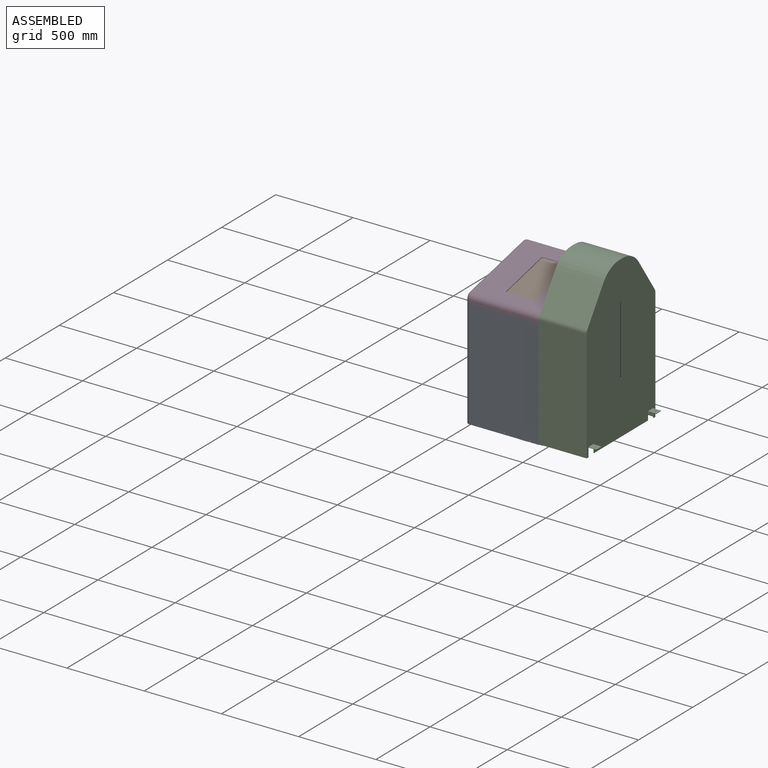
[diagram: assembled view]
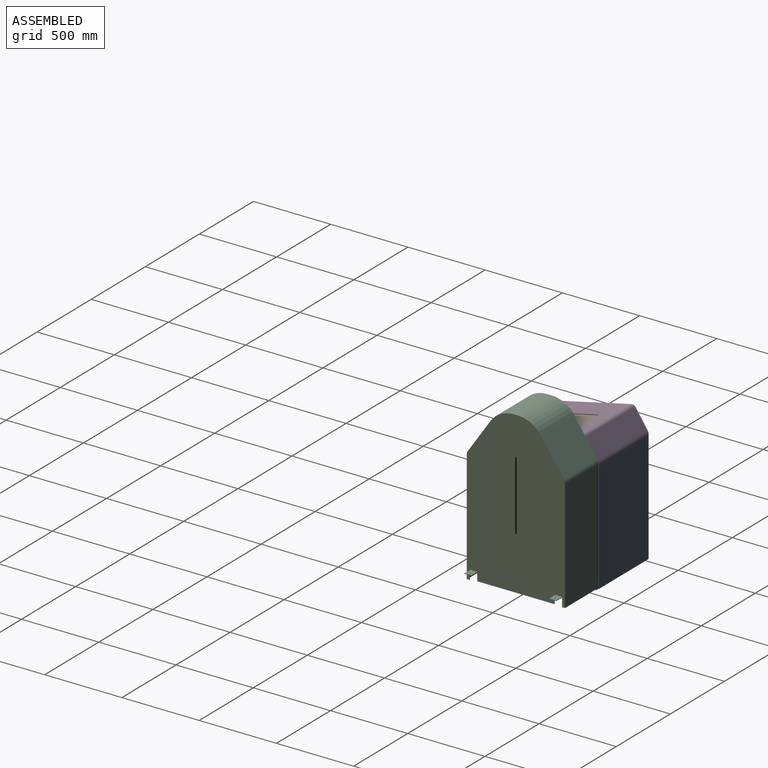
[diagram: assembled view, second angle]
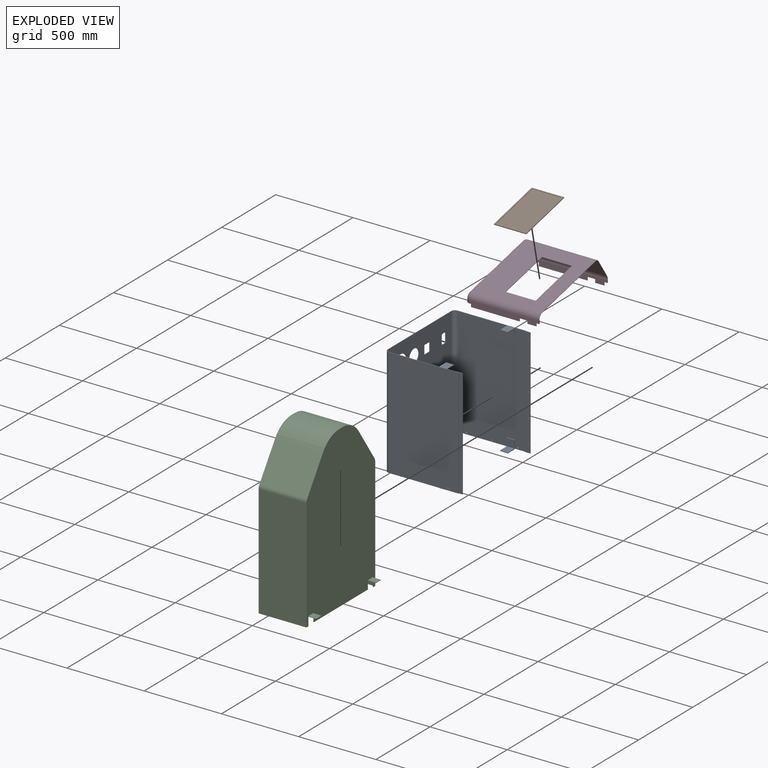
[diagram: exploded view]
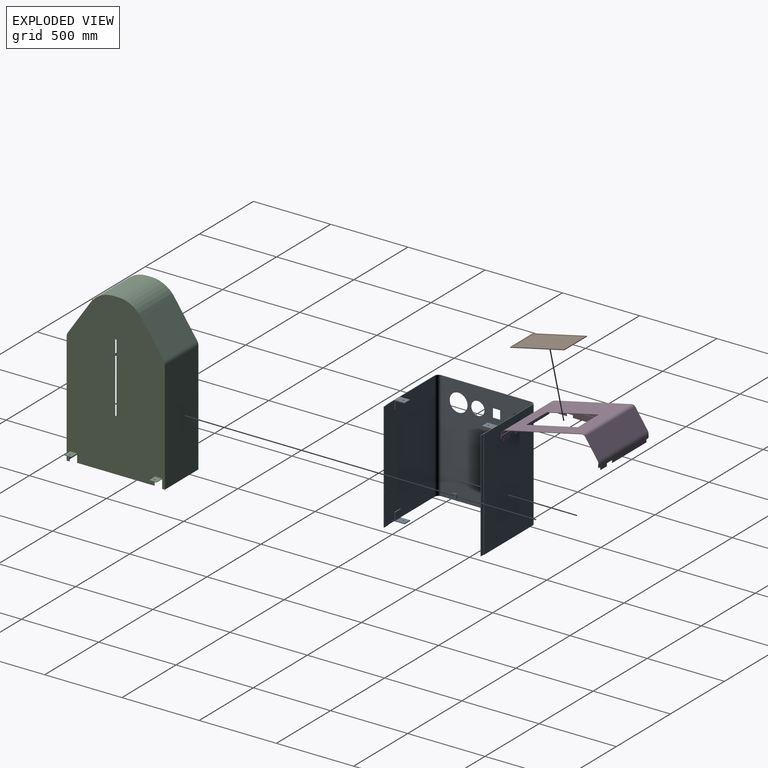
[diagram: exploded view, second angle]
ASSEMBLY  parts=4 mates=3
PART A: 115 faces, bbox 499.5x636x710 mm
  f0: plane 707.5x586mm, normal (-1,0,0), area 377061.5mm2, adj f9,f10,f17,f18,f52,f53,f75,f76
  f1: plane 707.5x580mm, normal (1,0,0), area 371354.1mm2, adj f9,f10,f11,f12,f13,f14,f16,f46
  f2: plane 707.5x433.5mm, normal (0,-1,0), area 301342.3mm2, adj f3,f9,f10,f16,f22,f23,f24,f27
  f3: plane 707.5x3mm, normal (-1,0,0), area 2122.5mm2, adj f2,f4,f9,f10
  f4: plane 707.5x38mm, normal (0,-1,0), area 26822.2mm2, adj f3,f5,f9,f10,f34,f35,f36,f37
  f5: plane 707.5x3mm, normal (1,0,0), area 2122.5mm2, adj f4,f6,f9,f10
  f6: plane 707.5x23.5mm, normal (0,1,0), area 16563.4mm2, adj f5,f7,f9,f10,f34,f35,f36,f37
  f7: plane 707.5x3mm, normal (1,0,0), area 2122.5mm2, adj f6,f8,f9,f10
  f8: plane 707.5x451mm, normal (0,1,0), area 319023.6mm2, adj f7,f9,f10,f17,f107,f109,f111
  f9: plane 636x499.5mm, normal (0,0,1), area 11401.4mm2, adj f0,f1,f2,f3,f4,f5,f6,f7
  f10: plane 636x499.5mm, normal (0,0,-1), area 4974mm2, adj f0,f1,f2,f3,f4,f5,f6,f7
  f11: plane 28x7mm, normal (0,-1,0), area 196mm2, adj f1,f12,f14,f15
  f12: plane 28x7mm, normal (0,0,1), area 196mm2, adj f1,f11,f13,f15
  f13: plane 28x7mm, normal (0,1,0), area 196mm2, adj f1,f12,f14,f15
  f14: plane 28x7mm, normal (0,0,-1), area 196mm2, adj f1,f11,f13,f15
  f15: plane 28x28mm, normal (1,0,0), area 731.2mm2, adj f11,f12,f13,f14,f18
  f16: cylinder r=25mm len=707.5mm, axis (0,0,1), area 27783.5mm2, adj f1,f2,f9,f10
  f17: cylinder r=25mm len=707.5mm, axis (0,0,-1), area 27783.5mm2, adj f0,f8,f9,f10
  f18: cylinder r=4.1mm len=10mm, axis (-1,0,0), area 257.6mm2, adj f0,f15
  f19: plane 50x5mm, normal (0,-1,0), area 250mm2, adj f9,f20,f23,f24
  f20: plane 60x50mm, normal (0,0,-1), area 2963.7mm2, adj f19,f21,f23,f24,f33
  f21: plane 50x50mm, normal (0,-1,0), area 2500mm2, adj f20,f22,f23,f24
  f22: plane 50x5mm, normal (0,0,-1), area 250mm2, adj f2,f21,f23,f24
  f23: plane 65x55mm, normal (-1,0,0), area 575mm2, adj f2,f9,f19,f20,f21,f22
  f24: plane 65x55mm, normal (1,0,0), area 575mm2, adj f2,f9,f19,f20,f21,f22
  f25: plane 50x5mm, normal (0,-1,0), area 250mm2, adj f26,f29,f30,f31
  f26: plane 61x50mm, normal (0,0,-1), area 3013.7mm2, adj f25,f30,f31,f32,f77
  f27: plane 50x5mm, normal (0,0,1), area 250mm2, adj f2,f28,f30,f31
  f28: plane 50x50mm, normal (0,-1,0), area 2500mm2, adj f27,f29,f30,f31
  f29: plane 60x50mm, normal (0,0,1), area 2963.7mm2, adj f25,f28,f30,f31,f32
  f30: plane 65x55mm, normal (-1,0,0), area 571.6mm2, adj f2,f25,f26,f27,f28,f29,f77
  f31: plane 65x55mm, normal (1,0,0), area 571.6mm2, adj f2,f25,f26,f27,f28,f29,f77
  f32: cylinder r=3.4mm len=6.8mm, axis (0,0,1), area 106.8mm2, adj f26,f29
  f33: cylinder r=3.4mm len=6.8mm, axis (0,0,-1), area 106.8mm2, adj f9,f20
  f34: cylinder r=2mm len=4mm, axis (0,-1,0), area 37.7mm2, adj f4,f6
  f35: cylinder r=2mm len=4mm, axis (0,-1,0), area 37.7mm2, adj f4,f6
  f36: cylinder r=2mm len=4mm, axis (0,-1,0), area 37.7mm2, adj f4,f6
  f37: cylinder r=2mm len=4mm, axis (0,-1,0), area 37.7mm2, adj f4,f6
  f38: cylinder r=2mm len=4mm, axis (0,-1,0), area 37.7mm2, adj f4,f6
  f39: plane 707.5x433.5mm, normal (0,1,0), area 301267.3mm2, adj f9,f10,f40,f51,f57,f58,f59,f63
  f40: plane 707.5x3mm, normal (-1,0,0), area 2122.5mm2, adj f9,f10,f39,f41
  f41: plane 707.5x38mm, normal (0,1,0), area 26822.2mm2, adj f9,f10,f40,f42,f70,f71,f72,f73
  f42: plane 707.5x3mm, normal (1,0,0), area 2122.5mm2, adj f9,f10,f41,f43
  f43: plane 707.5x23.5mm, normal (0,-1,0), area 16563.4mm2, adj f9,f10,f42,f44,f70,f71,f72,f73
  f44: plane 707.5x3mm, normal (1,0,0), area 2122.5mm2, adj f9,f10,f43,f45
  f45: plane 707.5x451mm, normal (0,-1,0), area 319023.6mm2, adj f9,f10,f44,f52,f106,f108,f110
  f46: plane 28x7mm, normal (0,1,0), area 196mm2, adj f1,f47,f49,f50
  f47: plane 28x7mm, normal (0,0,1), area 196mm2, adj f1,f46,f48,f50
  f48: plane 28x7mm, normal (0,-1,0), area 196mm2, adj f1,f47,f49,f50
  f49: plane 28x7mm, normal (0,0,-1), area 196mm2, adj f1,f46,f48,f50
  f50: plane 28x28mm, normal (1,0,0), area 731.2mm2, adj f46,f47,f48,f49,f53
  f51: cylinder r=25mm len=707.5mm, axis (0,0,1), area 27783.5mm2, adj f1,f9,f10,f39
  f52: cylinder r=25mm len=707.5mm, axis (0,0,-1), area 27783.5mm2, adj f0,f9,f10,f45
  f53: cylinder r=4.1mm len=10mm, axis (-1,0,0), area 257.6mm2, adj f0,f50
  f54: plane 50x5mm, normal (0,1,0), area 250mm2, adj f9,f55,f58,f59
  f55: plane 60x50mm, normal (0,0,-1), area 2963.7mm2, adj f54,f56,f58,f59,f69
  f56: plane 50x50mm, normal (0,1,0), area 2500mm2, adj f55,f57,f58,f59
  f57: plane 50x5mm, normal (0,0,-1), area 250mm2, adj f39,f56,f58,f59
  f58: plane 65x55mm, normal (-1,0,0), area 575mm2, adj f9,f39,f54,f55,f56,f57
  f59: plane 65x55mm, normal (1,0,0), area 575mm2, adj f9,f39,f54,f55,f56,f57
  f60: plane 50x5mm, normal (0,1,0), area 250mm2, adj f61,f65,f66,f67
  f61: plane 65x50mm, normal (0,0,-1), area 3213.7mm2, adj f60,f62,f66,f67,f68
  f62: plane 50x2.5mm, normal (0,-1,0), area 125mm2, adj f10,f61,f66,f67
  f63: plane 50x5mm, normal (0,0,1), area 250mm2, adj f39,f64,f66,f67
  f64: plane 50x50mm, normal (0,1,0), area 2500mm2, adj f63,f65,f66,f67
  f65: plane 60x50mm, normal (0,0,1), area 2963.7mm2, adj f60,f64,f66,f67,f68
  f66: plane 65x55mm, normal (-1,0,0), area 575mm2, adj f39,f60,f61,f62,f63,f64,f65
  f67: plane 65x55mm, normal (1,0,0), area 575mm2, adj f39,f60,f61,f62,f63,f64,f65
  f68: cylinder r=3.4mm len=6.8mm, axis (0,0,1), area 106.8mm2, adj f61,f65
  f69: cylinder r=3.4mm len=6.8mm, axis (0,0,-1), area 106.8mm2, adj f9,f55
  f70: cylinder r=2mm len=4mm, axis (0,1,0), area 37.7mm2, adj f41,f43
  f71: cylinder r=2mm len=4mm, axis (0,1,0), area 37.7mm2, adj f41,f43
  f72: cylinder r=2mm len=4mm, axis (0,1,0), area 37.7mm2, adj f41,f43
  f73: cylinder r=2mm len=4mm, axis (0,1,0), area 37.7mm2, adj f41,f43
  f74: cylinder r=2mm len=4mm, axis (0,1,0), area 37.7mm2, adj f41,f43
  f75: cylinder r=44mm len=88mm, axis (1,0,0), area 829.4mm2, adj f0,f1
  f76: cylinder r=59mm len=118mm, axis (1,0,0), area 1112.1mm2, adj f0,f1
  f77: cylinder r=4mm len=50mm, axis (1,0,0), area 314.2mm2, adj f2,f26,f30,f31
  f78: cylinder r=8mm len=7.71mm, axis (-1,0,0), area 31.2mm2, adj f0,f1,f80,f88
  f79: cylinder r=8mm len=4.28mm, axis (-1,0,0), area 13mm2, adj f0,f1,f80,f82
  f80: plane 10x3mm, normal (0,-0.27,0.96), area 31.1mm2, adj f0,f1,f78,f79
  f81: cylinder r=8mm len=7.71mm, axis (1,0,0), area 31.2mm2, adj f0,f1,f82,f89
  f82: plane 10x3mm, normal (0,0.27,0.96), area 31.1mm2, adj f0,f1,f79,f81
  f83: cylinder r=8mm len=7.71mm, axis (-1,0,0), area 31.2mm2, adj f0,f1,f85,f89
  f84: cylinder r=8mm len=4.28mm, axis (-1,0,0), area 13mm2, adj f0,f1,f85,f87
  f85: plane 10x3mm, normal (0,0.27,-0.96), area 31.1mm2, adj f0,f1,f83,f84
  f86: cylinder r=8mm len=7.71mm, axis (1,0,0), area 31.2mm2, adj f0,f1,f87,f88
  f87: plane 10x3mm, normal (0,-0.27,-0.96), area 31.1mm2, adj f0,f1,f84,f86
  f88: plane 45.34x3mm, normal (0,-1,0), area 136mm2, adj f0,f1,f78,f86
  f89: plane 45.34x3mm, normal (0,1,0), area 136mm2, adj f0,f1,f81,f83
  f90: plane 50.8x3mm, normal (0,-1,0), area 152.4mm2, adj f0,f1,f102,f103
  f91: plane 50.8x3mm, normal (0,1,0), area 152.4mm2, adj f0,f1,f104,f105
  f92: plane 43x3mm, normal (0,0,1), area 129mm2, adj f0,f1,f103,f104
  f93: plane 43x3mm, normal (0,0,-1), area 129mm2, adj f0,f1,f102,f105
  f94: plane 114x3mm, normal (0,1,0), area 342mm2, adj f0,f1,f98,f101
  f95: plane 114x3mm, normal (0,0,1), area 342mm2, adj f0,f1,f100,f101
  f96: plane 114x3mm, normal (0,-1,0), area 342mm2, adj f0,f1,f99,f100
  f97: plane 114x3mm, normal (0,0,-1), area 342mm2, adj f0,f1,f98,f99
  f98: cylinder r=5mm len=5mm, axis (1,0,0), area 23.6mm2, adj f0,f1,f94,f97
  f99: cylinder r=5mm len=5mm, axis (1,0,0), area 23.6mm2, adj f0,f1,f96,f97
  f100: cylinder r=5mm len=5mm, axis (1,0,0), area 23.6mm2, adj f0,f1,f95,f96
  f101: cylinder r=5mm len=5mm, axis (1,0,0), area 23.6mm2, adj f0,f1,f94,f95
  f102: cylinder r=3mm len=3mm, axis (1,0,0), area 14.1mm2, adj f0,f1,f90,f93
  f103: cylinder r=3mm len=3mm, axis (-1,0,0), area 14.1mm2, adj f0,f1,f90,f92
  f104: cylinder r=3mm len=3mm, axis (1,0,0), area 14.1mm2, adj f0,f1,f91,f92
  f105: cylinder r=3mm len=3mm, axis (-1,0,0), area 14.1mm2, adj f0,f1,f91,f93
  f106: cylinder r=2.5mm len=5mm, axis (0,-1,0), area 47.1mm2, adj f39,f45
  f107: cylinder r=2.5mm len=5mm, axis (0,-1,0), area 47.1mm2, adj f2,f8
  f108: cylinder r=2.5mm len=5mm, axis (0,-1,0), area 47.1mm2, adj f39,f45
  f109: cylinder r=2.5mm len=5mm, axis (0,-1,0), area 47.1mm2, adj f2,f8
  f110: cylinder r=2.5mm len=5mm, axis (0,-1,0), area 47.1mm2, adj f39,f45
  f111: cylinder r=2.5mm len=5mm, axis (0,-1,0), area 47.1mm2, adj f2,f8
  f112: cylinder r=2.5mm len=5mm, axis (1,0,0), area 47.1mm2, adj f0,f1
  f113: cylinder r=2.5mm len=5mm, axis (1,0,0), area 47.1mm2, adj f0,f1
  f114: cylinder r=2.5mm len=5mm, axis (1,0,0), area 47.1mm2, adj f0,f1
PART B: 35 faces, bbox 359.3x209.5x5.5 mm
  f0: plane 209.5x4.99mm, normal (-1,0,0), area 1040.8mm2, adj f1,f3,f5,f11,f13,f15,f17,f30
  f1: plane 359.3x4.99mm, normal (0,-1,0), area 1793.6mm2, adj f0,f2,f5,f29
  f2: plane 209.5x4.99mm, normal (1,0,0), area 1040.8mm2, adj f1,f3,f5,f19,f21,f23,f25,f27
  f3: plane 359.3x4.99mm, normal (0,1,0), area 1793.6mm2, adj f0,f2,f5,f28
  f4: plane 358.28x208.48mm, normal (0,0,1), area 7801.8mm2, adj f27,f28,f29,f30,f31,f32,f33,f34
  f5: plane 359.3x209.5mm, normal (0,0,-1), area 75273.3mm2, adj f0,f1,f2,f3
  f6: plane 193.54x1.78mm, normal (1,0,0), area 344.1mm2, adj f7,f9,f10,f32
  f7: plane 344.23x1.78mm, normal (0,-1,0), area 612mm2, adj f6,f8,f10,f31
  f8: plane 193.54x1.78mm, normal (-1,0,0), area 344.1mm2, adj f7,f9,f10,f33
  f9: plane 344.23x1.78mm, normal (0,1,0), area 612mm2, adj f6,f8,f10,f34
  f10: plane 344.23x193.54mm, normal (0,0,1), area 66621.3mm2, adj f6,f7,f8,f9
  f11: cylinder r=0.64mm len=2.03mm, axis (-1,0,0), area 8.1mm2, adj f0,f12
  f12: plane 1.27x1.27mm, normal (-1,0,0), area 1.3mm2, adj f11
  f13: cylinder r=0.64mm len=2.03mm, axis (-1,0,0), area 8.1mm2, adj f0,f14
  f14: plane 1.27x1.27mm, normal (-1,0,0), area 1.3mm2, adj f13
  f15: cylinder r=0.64mm len=2.03mm, axis (-1,0,0), area 8.1mm2, adj f0,f16
  f16: plane 1.27x1.27mm, normal (-1,0,0), area 1.3mm2, adj f15
  f17: cylinder r=0.64mm len=2.03mm, axis (-1,0,0), area 8.1mm2, adj f0,f18
  f18: plane 1.27x1.27mm, normal (-1,0,0), area 1.3mm2, adj f17
  f19: cylinder r=0.64mm len=2.03mm, axis (1,0,0), area 8.1mm2, adj f2,f20
  f20: plane 1.27x1.27mm, normal (1,0,0), area 1.3mm2, adj f19
  f21: cylinder r=0.64mm len=2.03mm, axis (1,0,0), area 8.1mm2, adj f2,f22
  f22: plane 1.27x1.27mm, normal (1,0,0), area 1.3mm2, adj f21
  f23: cylinder r=0.64mm len=2.03mm, axis (1,0,0), area 8.1mm2, adj f2,f24
  f24: plane 1.27x1.27mm, normal (1,0,0), area 1.3mm2, adj f23
  f25: cylinder r=0.64mm len=2.03mm, axis (1,0,0), area 8.1mm2, adj f2,f26
  f26: plane 1.27x1.27mm, normal (1,0,0), area 1.3mm2, adj f25
  f27: cylinder r=0.51mm len=209.5mm, axis (0,1,0), area 166.9mm2, adj f2,f4,f28,f29
  f28: cylinder r=0.51mm len=359.3mm, axis (-1,0,0), area 286.4mm2, adj f3,f4,f27,f30
  f29: cylinder r=0.51mm len=359.3mm, axis (1,0,0), area 286.4mm2, adj f1,f4,f27,f30
  f30: cylinder r=0.51mm len=209.5mm, axis (0,-1,0), area 166.9mm2, adj f0,f4,f28,f29
  f31: cylinder r=0.25mm len=344.74mm, axis (-1,0,0), area 137.4mm2, adj f4,f7,f32,f33
  f32: cylinder r=0.25mm len=194.04mm, axis (0,-1,0), area 77.3mm2, adj f4,f6,f31,f34
  f33: cylinder r=0.25mm len=194.04mm, axis (0,1,0), area 77.3mm2, adj f4,f8,f31,f34
  f34: cylinder r=0.25mm len=344.74mm, axis (1,0,0), area 137.4mm2, adj f4,f9,f32,f33
PART C: 60 faces, bbox 360x636x1045 mm
  f0: plane 500x3mm, normal (0,0,-1), area 1500mm2, adj f6,f8,f28,f29
  f1: plane 310x18mm, normal (0,0,-1), area 975mm2, adj f5,f6,f7,f8,f10,f26
  f2: plane 304x214.27mm, normal (0,-0.83,-0.56), area 78823mm2, adj f8,f17,f19,f23
  f3: plane 304x214.27mm, normal (0,0.83,-0.56), area 78823mm2, adj f8,f17,f18,f24
  f4: plane 304x27.26mm, normal (0,0,-1), area 8286.9mm2, adj f8,f17,f18,f19
  f5: plane 726.74x307mm, normal (0,1,0), area 222998.4mm2, adj f1,f8,f10,f16,f17,f24,f45,f47
  f6: plane 1045x636mm, normal (-1,0,0), area 585345.2mm2, adj f0,f1,f7,f11,f12,f13,f14,f15
  f7: plane 727.67x310mm, normal (0,-1,0), area 225514mm2, adj f1,f6,f10,f22,f45,f47,f49,f51
  f8: plane 1042x630mm, normal (1,0,0), area 578289.9mm2, adj f0,f1,f2,f3,f4,f5,f9,f12
  f9: plane 726.74x307mm, normal (0,-1,0), area 222993.8mm2, adj f8,f10,f12,f16,f17,f23,f44,f46
  f10: plane 1045x636mm, normal (1,0,0), area 151309.5mm2, adj f1,f5,f7,f9,f11,f12,f13,f14
  f11: plane 727.67x310mm, normal (0,1,0), area 225514mm2, adj f6,f10,f12,f25,f44,f46,f48,f50
  f12: plane 310x18mm, normal (0,0,-1), area 975mm2, adj f6,f8,f9,f10,f11,f31
  f13: plane 310x216.34mm, normal (0,-0.83,0.56), area 81157.1mm2, adj f6,f10,f20,f22
  f14: plane 310x30.43mm, normal (0,0,1), area 9433.8mm2, adj f6,f10,f20,f21
  f15: plane 310x216.34mm, normal (0,0.83,0.56), area 81157.1mm2, adj f6,f10,f21,f25
  f16: plane 630x3mm, normal (0,0,-1), area 1890mm2, adj f5,f9,f10,f17
  f17: plane 630x332.99mm, normal (-1,0,0), area 144009.1mm2, adj f2,f3,f4,f5,f9,f16,f18,f19
  f18: cylinder r=179.6mm len=304mm, axis (1,0,0), area 53105mm2, adj f3,f4,f8,f17
  f19: cylinder r=179.6mm len=304mm, axis (1,0,0), area 53105mm2, adj f2,f4,f8,f17
  f20: cylinder r=179.6mm len=310mm, axis (-1,0,0), area 54153.1mm2, adj f6,f10,f13,f14
  f21: cylinder r=179.6mm len=310mm, axis (-1,0,0), area 54153.1mm2, adj f6,f10,f14,f15
  f22: cylinder r=40mm len=310mm, axis (1,0,0), area 7417.1mm2, adj f6,f7,f10,f13
  f23: cylinder r=40mm len=304mm, axis (-1,0,0), area 7273.5mm2, adj f2,f8,f9,f17
  f24: cylinder r=40mm len=304mm, axis (1,0,0), area 7273.5mm2, adj f3,f5,f8,f17
  f25: cylinder r=40mm len=310mm, axis (-1,0,0), area 7417.1mm2, adj f6,f10,f11,f15
  f26: plane 59x3mm, normal (0,1,0), area 168.4mm2, adj f1,f6,f8,f41
  f27: plane 49x46mm, normal (0,0,-1), area 2217.7mm2, adj f32,f34,f35,f41,f54
  f28: plane 54x3mm, normal (0,-1,0), area 153.4mm2, adj f0,f6,f8,f41
  f29: plane 54x3mm, normal (0,1,0), area 153.4mm2, adj f0,f6,f8,f40
  f30: plane 49x46mm, normal (0,0,-1), area 2217.7mm2, adj f36,f38,f39,f40,f55
  f31: plane 59x3mm, normal (0,-1,0), area 168.4mm2, adj f6,f8,f12,f40
  f32: plane 50x7mm, normal (0,-1,0), area 153.4mm2, adj f6,f27,f33,f35,f41,f42
  f33: plane 46x46mm, normal (0,0,1), area 2079.7mm2, adj f32,f34,f35,f42,f54
  f34: plane 50x7mm, normal (0,1,0), area 153.4mm2, adj f6,f27,f33,f35,f41,f42
  f35: plane 46x3mm, normal (-1,0,0), area 138mm2, adj f27,f32,f33,f34
  f36: plane 50x7mm, normal (0,-1,0), area 153.4mm2, adj f6,f30,f37,f39,f40,f43
  f37: plane 46x46mm, normal (0,0,1), area 2079.7mm2, adj f36,f38,f39,f43,f55
  f38: plane 50x7mm, normal (0,1,0), area 153.4mm2, adj f6,f30,f37,f39,f40,f43
  f39: plane 46x3mm, normal (-1,0,0), area 138mm2, adj f30,f36,f37,f38
  f40: cylinder r=4mm len=50mm, axis (0,1,0), area 310.1mm2, adj f6,f8,f29,f30,f31,f36,f38
  f41: cylinder r=4mm len=50mm, axis (0,1,0), area 310.1mm2, adj f6,f8,f26,f27,f28,f32,f34
  f42: cylinder r=4mm len=46mm, axis (0,1,0), area 289mm2, adj f6,f32,f33,f34
  f43: cylinder r=4mm len=46mm, axis (0,1,0), area 289mm2, adj f6,f36,f37,f38
  f44: cylinder r=2mm len=4mm, axis (0,-1,0), area 37.7mm2, adj f9,f11
  f45: cylinder r=2mm len=4mm, axis (0,-1,0), area 37.7mm2, adj f5,f7
  f46: cylinder r=2mm len=4mm, axis (0,-1,0), area 37.7mm2, adj f9,f11
  f47: cylinder r=2mm len=4mm, axis (0,-1,0), area 37.7mm2, adj f5,f7
  f48: cylinder r=2mm len=4mm, axis (0,-1,0), area 37.7mm2, adj f9,f11
  f49: cylinder r=2mm len=4mm, axis (0,-1,0), area 37.7mm2, adj f5,f7
  f50: cylinder r=2mm len=4mm, axis (0,-1,0), area 37.7mm2, adj f9,f11
  f51: cylinder r=2mm len=4mm, axis (0,-1,0), area 37.7mm2, adj f5,f7
  f52: cylinder r=2mm len=4mm, axis (0,-1,0), area 37.7mm2, adj f9,f11
  f53: cylinder r=2mm len=4mm, axis (0,-1,0), area 37.7mm2, adj f5,f7
  f54: cylinder r=3.4mm len=6.8mm, axis (0,0,-1), area 64.1mm2, adj f27,f33
  f55: cylinder r=3.4mm len=6.8mm, axis (0,0,-1), area 64.1mm2, adj f30,f37
  f56: plane 440x3mm, normal (0,1,0), area 1320mm2, adj f6,f8,f58,f59
  f57: plane 440x3mm, normal (0,-1,0), area 1320mm2, adj f6,f8,f58,f59
  f58: cylinder r=5mm len=10mm, axis (-1,0,0), area 47.1mm2, adj f6,f8,f56,f57
  f59: cylinder r=5mm len=10mm, axis (-1,0,0), area 47.1mm2, adj f6,f8,f56,f57
PART D: 72 faces, bbox 476x636x190.5 mm
  f0: plane 423.5x20mm, normal (0,-1,0), area 7553.4mm2, adj f6,f7,f24,f49,f57,f58,f59,f71
  f1: plane 58.5x20mm, normal (0,1,0), area 1170mm2, adj f10,f24,f53,f70
  f2: plane 550x20mm, normal (-1,0,0), area 9693.4mm2, adj f3,f4,f24,f44,f46,f47,f60,f61
  f3: plane 360x3mm, normal (0,0,-1), area 1080mm2, adj f2,f45,f61,f64
  f4: plane 55x3mm, normal (0,0,-1), area 165mm2, adj f2,f45,f46,f65
  f5: plane 443x40mm, normal (0,1,0), area 16219.7mm2, adj f6,f7,f24,f30,f49,f50,f57,f58
  f6: plane 58.5x3mm, normal (0,0,-1), area 175.5mm2, adj f0,f5,f58,f71
  f7: plane 315x3mm, normal (0,0,-1), area 945mm2, adj f0,f5,f49,f57
  f8: plane 315x20mm, normal (0,1,0), area 6300mm2, adj f11,f24,f51,f54
  f9: plane 443x40mm, normal (0,-1,0), area 16213.4mm2, adj f10,f11,f24,f30,f51,f52,f53,f54
  f10: plane 58.5x3mm, normal (0,0,-1), area 175.5mm2, adj f1,f9,f53,f70
  f11: plane 315x3mm, normal (0,0,-1), area 945mm2, adj f8,f9,f51,f54
  f12: cylinder r=25mm len=25mm, axis (0,0,-1), area 785.4mm2, adj f13,f24,f29,f39
  f13: plane 451x20mm, normal (0,-1,0), area 9020mm2, adj f12,f20,f24,f30
  f14: plane 20x5mm, normal (0,1,0), area 100mm2, adj f15,f24,f28,f49
  f15: cylinder r=25mm len=25mm, axis (0,0,-1), area 785.4mm2, adj f14,f24,f31,f38
  f16: cylinder r=25mm len=25mm, axis (0,0,-1), area 785.4mm2, adj f17,f24,f31,f34
  f17: plane 20x5mm, normal (0,-1,0), area 100mm2, adj f16,f24,f25,f51
  f18: plane 451x20mm, normal (0,1,0), area 9020mm2, adj f19,f23,f24,f30
  f19: cylinder r=25mm len=25mm, axis (0,0,-1), area 785.4mm2, adj f18,f24,f29,f43
  f20: cylinder r=40mm len=451mm, axis (1,0,0), area 24337.4mm2, adj f13,f21,f30,f39
  f21: plane 491.92x451mm, normal (0,-0.22,0.98), area 160685.2mm2, adj f20,f30,f33,f40,f66,f67,f68,f69
  f22: plane 451x117.08mm, normal (0,0.83,0.56), area 63894.6mm2, adj f23,f30,f33,f42
  f23: cylinder r=40mm len=451mm, axis (1,0,0), area 10790.6mm2, adj f18,f22,f30,f43
  f24: plane 636x476mm, normal (0,0,-1), area 4863mm2, adj f0,f1,f2,f5,f8,f9,f12,f13
  f25: cylinder r=37mm len=448mm, axis (1,0,0), area 9914.9mm2, adj f17,f26,f30,f34,f52
  f26: plane 448x115.39mm, normal (0,-0.83,-0.56), area 62555.7mm2, adj f25,f30,f32,f35
  f27: plane 489.93x448mm, normal (0,0.22,-0.98), area 158258.5mm2, adj f28,f30,f32,f37,f66,f67,f68,f69
  f28: cylinder r=37mm len=448mm, axis (1,0,0), area 22362.3mm2, adj f14,f27,f30,f38,f50
  f29: plane 586x145.52mm, normal (-1,0,0), area 51678.8mm2, adj f12,f19,f24,f39,f40,f42,f43
  f30: plane 636x170.52mm, normal (1,0,0), area 2498.6mm2, adj f5,f9,f13,f18,f20,f21,f22,f23
  f31: plane 580x142.15mm, normal (1,0,0), area 38548.3mm2, adj f15,f16,f24,f34,f35,f37,f38,f44
  f32: cylinder r=25mm len=448mm, axis (-1,0,0), area 13376.9mm2, adj f26,f27,f30,f36
  f33: cylinder r=25mm len=451mm, axis (1,0,0), area 13466.5mm2, adj f21,f22,f30,f41
  f34: torus R=12mm, axis (1,0,0), area 655.7mm2, adj f16,f25,f31,f35
  f35: cylinder r=25mm len=129.47mm, axis (0,0.56,-0.83), area 5483.4mm2, adj f26,f31,f34,f36
  f36: sphere r=25mm, area 746.5mm2, adj f32,f35,f37
  f37: cylinder r=25mm len=495.42mm, axis (0,0.98,0.22), area 19722.1mm2, adj f27,f31,f36,f38
  f38: torus R=12mm, axis (1,0,0), area 1478.9mm2, adj f15,f28,f31,f37
  f39: torus R=15mm, axis (-1,0,0), area 1637.8mm2, adj f12,f20,f29,f40
  f40: cylinder r=25mm len=497.41mm, axis (0,-0.98,-0.22), area 19802.2mm2, adj f21,f29,f39,f41
  f41: sphere r=25mm, area 746.5mm2, adj f33,f40,f42
  f42: cylinder r=25mm len=131.15mm, axis (0,-0.56,0.83), area 5563.5mm2, adj f22,f29,f41,f43
  f43: torus R=15mm, axis (-1,0,0), area 726.2mm2, adj f19,f23,f29,f42
  f44: plane 40x3mm, normal (0,1,0), area 120mm2, adj f2,f31,f45,f47,f48
  f45: plane 550x40mm, normal (1,0,0), area 20693.4mm2, adj f3,f4,f44,f46,f47,f48,f60,f61
  f46: plane 40x3mm, normal (0,-1,0), area 120mm2, adj f2,f4,f31,f45,f48
  f47: plane 55x3mm, normal (0,0,-1), area 165mm2, adj f2,f44,f45,f60
  f48: plane 550x3mm, normal (0,0,1), area 1650mm2, adj f31,f44,f45,f46
  f49: plane 40x3mm, normal (-1,0,0), area 120mm2, adj f0,f5,f7,f14,f50
  f50: plane 443x3mm, normal (0,0,1), area 1329mm2, adj f5,f28,f30,f49
  f51: plane 40x3mm, normal (-1,0,0), area 120mm2, adj f8,f9,f11,f17,f52
  f52: plane 443x3mm, normal (0,0,1), area 1329mm2, adj f9,f25,f30,f51
  f53: plane 22.33x3mm, normal (-1,0,0), area 67mm2, adj f1,f9,f10,f55,f56
  f54: plane 22.33x3mm, normal (1,0,0), area 67mm2, adj f8,f9,f11,f55,f56
  f55: plane 50x3mm, normal (0,0,-1), area 150mm2, adj f9,f53,f54,f56
  f56: plane 50x2.33mm, normal (0,-1,0), area 116.6mm2, adj f24,f53,f54,f55
  f57: plane 22.21x3mm, normal (1,0,0), area 63.6mm2, adj f0,f5,f7,f59
  f58: plane 22.21x3mm, normal (-1,0,0), area 63.6mm2, adj f0,f5,f6,f59
  f59: cylinder r=4mm len=50mm, axis (1,0,0), area 263.6mm2, adj f0,f5,f57,f58
  f60: plane 16.33x3mm, normal (0,-1,0), area 49mm2, adj f2,f45,f47,f62
  f61: plane 16.33x3mm, normal (0,1,0), area 49mm2, adj f2,f3,f45,f62
  f62: plane 40x3mm, normal (0,0,-1), area 120mm2, adj f2,f45,f60,f61
  f63: plane 40x3mm, normal (0,0,-1), area 120mm2, adj f2,f45,f64,f65
  f64: plane 16.33x3mm, normal (0,-1,0), area 49mm2, adj f2,f3,f45,f63
  f65: plane 16.33x3mm, normal (0,1,0), area 49mm2, adj f2,f4,f45,f63
  f66: plane 336.24x78.57mm, normal (1,0,0), area 1032mm2, adj f21,f27,f67,f69
  f67: plane 194x2.93mm, normal (0,0.98,0.22), area 582mm2, adj f21,f27,f66,f68
  f68: plane 336.24x78.57mm, normal (-1,0,0), area 1032mm2, adj f21,f27,f67,f69
  f69: plane 194x2.93mm, normal (0,-0.98,-0.22), area 582mm2, adj f21,f27,f66,f68
  f70: plane 20x3mm, normal (1,0,0), area 60mm2, adj f1,f9,f10,f24
  f71: plane 20x3mm, normal (1,0,0), area 60mm2, adj f0,f5,f6,f24
PLACE A t=(0,-304,-7.5)mm fixed
PLACE B rot(axis=(0.11,-0.11,0.99),90.7deg) t=(391.75,-214.14,763.51)mm
PLACE C rot(axis=(0,0,1),180deg) t=(721.5,135,0.5)mm
PLACE D t=(37,303,791.83)mm
MATE fastened A.f38 <-> C.f44  axis (0,-1,0) through (489.5,315,650.5)mm
MATE fastened D.f2 <-> A.f1  axis (-1,0,0) through (3,3,697.5)mm
MATE fastened B.f4 <-> D.f27  axis (0,-0.22,0.98) through (287,-214.85,768.99)mm
